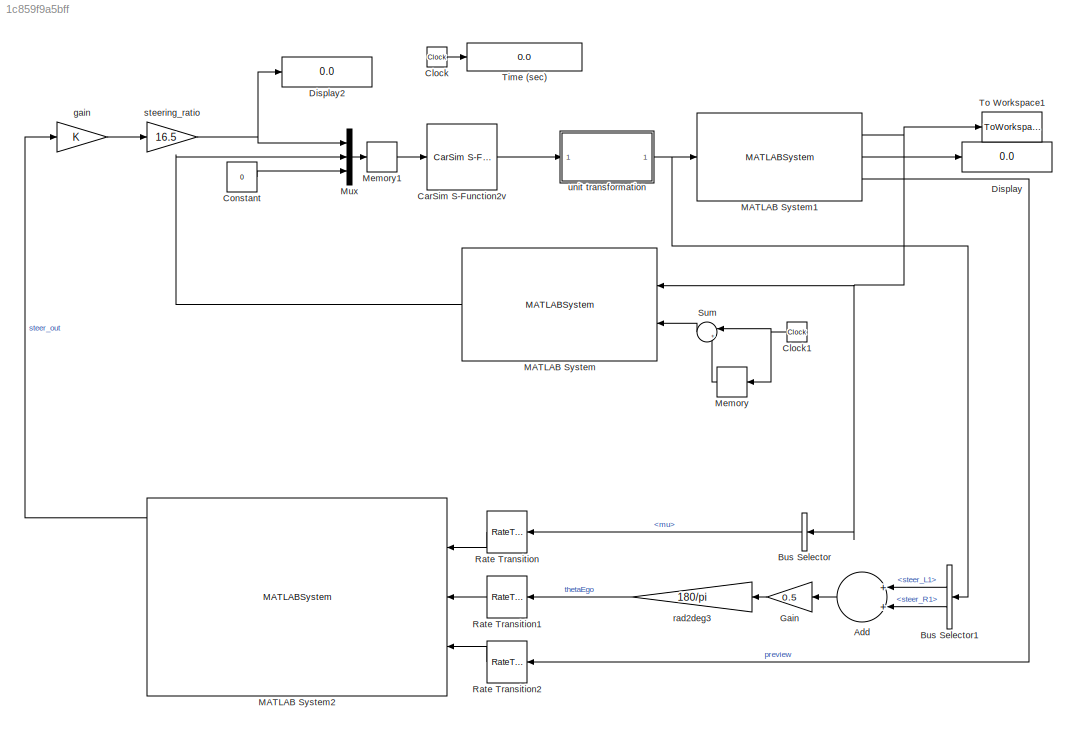
MODEL slx_1c859f9a5bff
KIND model
CONFIG AbsTol = 1e-6
CONFIG EnableMultiTasking = off
CONFIG FixedStep = 0.002
CONFIG MaxStep = auto
CONFIG MinStep = auto
CONFIG PreLoadFcn = addpath <path>
CONFIG RelTol = 1e-3
CONFIG SampleTimeConstraint = Unconstrained
CONFIG Solver = ode45
CONFIG SolverName = ode45
CONFIG StartTime = 0
CONFIG StopTime = 200
BLOCK [Sum] Add
  InputSameDT = off
  OutDataTypeStr = Inherit: Inherit via internal rule
  Ports = [2, 1]
  SaturateOnIntegerOverflow = off
BLOCK [BusSelector] Bus Selector
  OutputAsBus = off
  OutputSignals = mu
  Ports = [1, 1]
BLOCK [BusSelector] Bus Selector1
  OutputAsBus = off
  OutputSignals = steer_L1,steer_R1
  Ports = [1, 2]
BLOCK [Reference] CarSim S-Function2v  REF=Solver_SF/CarSim S-Function2v
  AttributesFormatString = Vehicle Code: %<VehicleCode>
  Ports = [1, 1]
  Priority = 1
  SourceBlock = Solver_SF/CarSim S-Function2v
  SourceType = Vehicle math model library
BLOCK [Clock] Clock
BLOCK [Clock] Clock1
BLOCK [Constant] Constant
  Value = 0
BLOCK [Display] Display
  Decimation = 1
  Ports = [1]
BLOCK [Display] Display2
  Decimation = 1
  Ports = [1]
BLOCK [Gain] Gain
  Gain = 0.5
  OutDataTypeStr = Inherit: Inherit via internal rule
  ParamDataTypeStr = Inherit: Inherit via internal rule
  SaturateOnIntegerOverflow = off
BLOCK [MATLABSystem] MATLAB System
  K_d = 3*0.25*0.7/40
  K_i = 1.2*0.25/0.7
  K_p = 0.6*0.25
  MaskDisplay = disp('acc_pid_controller');\nport_label('input',1,'lk_acc_state');\nport_label('input',2,'dt');\nport_label('output',1,'throttle');
  MaskType = acc_pid_controller
  Ports = [2, 1]
  SimulateUsing = Code generation
  System = acc_pid_controller
  max_throttle = 0.3
  mem_length = 20
  mu_des = 28/3.6
  windup_reg = 2
BLOCK [MATLABSystem] MATLAB System1
  MaskDisplay = disp('road');\nport_label('input',1,'data');\nport_label('output',1,'lk_acc_state');\nport_label('output',2,'road_left');\nport_label('output',3,'preview');
  MaskType = road
  N_interp = 10
  N_path = 3
  Ports = [1, 3]
  SimulateUsing = Code generation
  System = road
  circular = 0
  compute_preview = true
  dt = 0.1
  h0 = 0
  lat0 = 42.30095833
  long0 = -83.69758056
  pathfile = <path>
BLOCK [MATLABSystem] MATLAB System2
  MaskDisplay = disp('comma_ai_LK');\nport_label('input',1,'vEgo');\nport_label('input',2,'thetaEgo');\nport_label('input',3,'observed_path');\nport_label('output',1,'steer');\nport_label('output',2,'satflag');\nport_label('output',3,'d_lookahead');\nport_label('output',4,'y_des');\nport_label('output',5,'angle_steers_des');\nport_label('output',6,'d_poly0');\nport_label('output',7,'d_poly1');\nport_label('output',8,'d_poly...<+38ch>
  MaskType = comma_ai_LK
  Ports = [3, 9]
  SimulateUsing = Interpreted execution
  System = comma_ai_LK
BLOCK [Memory] Memory
BLOCK [Memory] Memory1
  X0 = [0;0;0]
BLOCK [Mux] Mux
  DisplayOption = bar
  Inputs = 3
  Ports = [3, 1]
BLOCK [RateTransition] Rate Transition
  OutPortSampleTime = 0.01
  X0 = 1
BLOCK [RateTransition] Rate Transition1
  OutPortSampleTime = 0.01
BLOCK [RateTransition] Rate Transition2
  OutPortSampleTime = 0.01
BLOCK [Sum] Sum
  IconShape = round
  InputSameDT = off
  Inputs = |+-
  OutDataTypeStr = Inherit: Inherit via internal rule
  Ports = [2, 1]
  SaturateOnIntegerOverflow = off
BLOCK [Display] Time (sec)
  Decimation = 100
  Format = bank
  Ports = [1]
BLOCK [ToWorkspace] To Workspace1
  FixptAsFi = on
  MaxDataPoints = inf
  Ports = [1]
  SampleTime = -1
  Save2DSignal = 3-D array (concatenate along third dimension)
  SaveFormat = Timeseries
  VariableName = lk_acc_state
BLOCK [Gain] gain
  OutDataTypeStr = Inherit: Inherit via internal rule
  ParamDataTypeStr = Inherit: Inherit via internal rule
  SaturateOnIntegerOverflow = off
BLOCK [Gain] rad2deg3
  Gain = 180/pi
  OutDataTypeStr = Inherit: Inherit via internal rule
  ParamDataTypeStr = Inherit: Inherit via internal rule
  SaturateOnIntegerOverflow = off
BLOCK [Gain] steering_ratio
  Gain = 16.5
  OutDataTypeStr = Inherit: Inherit via internal rule
  ParamDataTypeStr = Inherit: Inherit via internal rule
  SaturateOnIntegerOverflow = off
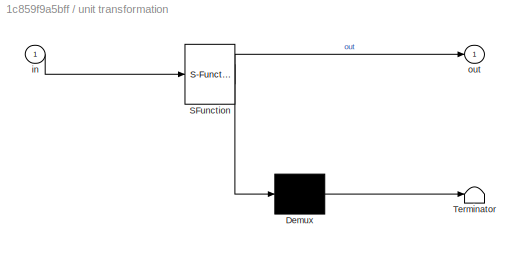
BLOCK [SubSystem] unit transformation 
  ErrorFcn = Stateflow.Translate.translate
  PermitHierarchicalResolution = ExplicitOnly
  Ports = [1, 1]
  RequestExecContextInheritance = off
  SFBlockType = MATLAB Function
  TreatAsAtomicUnit = on
  Variant = off
BLOCK [Demux] unit transformation / Demux 
  Outputs = 1
  Ports = [1, 1]
BLOCK [S-Function] unit transformation / SFunction 
  EnableBusSupport = on
  FunctionName = sf_sfun
  PortCounts = [1 2]
  Ports = [1, 2]
  SFcnIsStateOwnerBlock = off
  SFunctionDeploymentMode = off
  Tag = Stateflow S-Function carsim_experiment_commai 1
BLOCK [Terminator] unit transformation / Terminator 
BLOCK [Inport] unit transformation /in
  IconDisplay = Port number
BLOCK [Outport] unit transformation /out
  IconDisplay = Port number
LINE Add:1 -> Gain:1
LINE Bus Selector1:1 -> Add:1
LINE Bus Selector1:2 -> Add:2
LINE Bus Selector:1 -> Rate Transition:1
LINE CarSim S-Function2v:1 -> unit transformation :1
NET Clock1:1 -> Memory:1, Sum:1
LINE Clock:1 -> Time (sec):1
LINE Constant:1 -> Mux:3
LINE Gain:1 -> rad2deg3:1
NET MATLAB System1:1 -> Bus Selector:1, MATLAB System:1, To Workspace1:1
LINE MATLAB System1:2 -> Display:1
LINE MATLAB System1:3 -> Rate Transition2:1
LINE MATLAB System2:1 -> gain:1
LINE MATLAB System:1 -> Mux:2
LINE Memory1:1 -> CarSim S-Function2v:1
LINE Memory:1 -> Sum:2
LINE Mux:1 -> Memory1:1
LINE Rate Transition1:1 -> MATLAB System2:2
LINE Rate Transition2:1 -> MATLAB System2:3
LINE Rate Transition:1 -> MATLAB System2:1
LINE Sum:1 -> MATLAB System:2
LINE gain:1 -> steering_ratio:1
LINE rad2deg3:1 -> Rate Transition1:1
NET steering_ratio:1 -> Display2:1, Mux:1
NET unit transformation :1 -> Bus Selector1:1, MATLAB System1:1
note: NET lines group one-source signal fan-out (src -> all destinations, sorted); 1:1 wires keep LINE
CHART unit transformation
 states=1 transitions=1
  STATE_LABEL 'eML_blk_kernel()'
  STATE_LABEL 'SCRIPT:\nfunction out  = fcn(in)\n    out.latitude = in(1);\n    out.longitude = in(2);\n    out.el = 0;\n    out.Yaw = deg2rad(in(3));\n    out.YawRate = deg2rad(in(4));\n    out.Vx = in(5)/3.6;\n    out.Vy = in(6)/3.6;\n    out.x_gps_cg = in(7)/1000;\n    out.y_gps_cg = in(8)/1000;\n    out.steer_L1 = deg2rad(in(9));\n    out.steer_R1 = deg2rad(in(10));\n    out.Alpha_L1 = deg2rad(in(11));\n    out.Alpha_R1 =...<+570ch>'
note: 2 file-system paths scrubbed to <path> (not preserved elsewhere — flat text is the only slx artifact)
